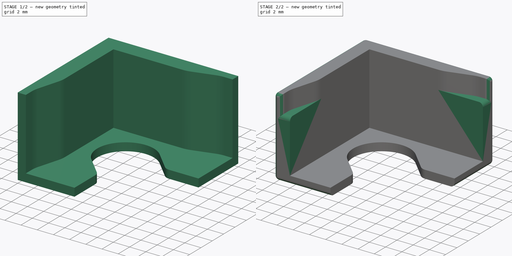
[diagram: build sequence overview — one tinted view per stage of 2, left to right]
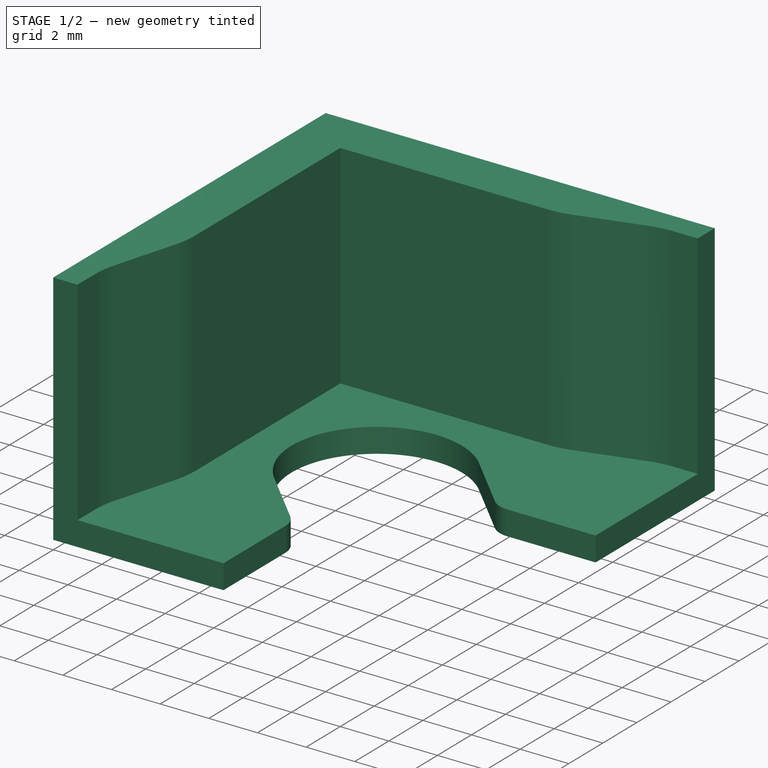
[diagram: stage 1 of 2 — iso view after this stage's code; geometry added in this stage tinted green]
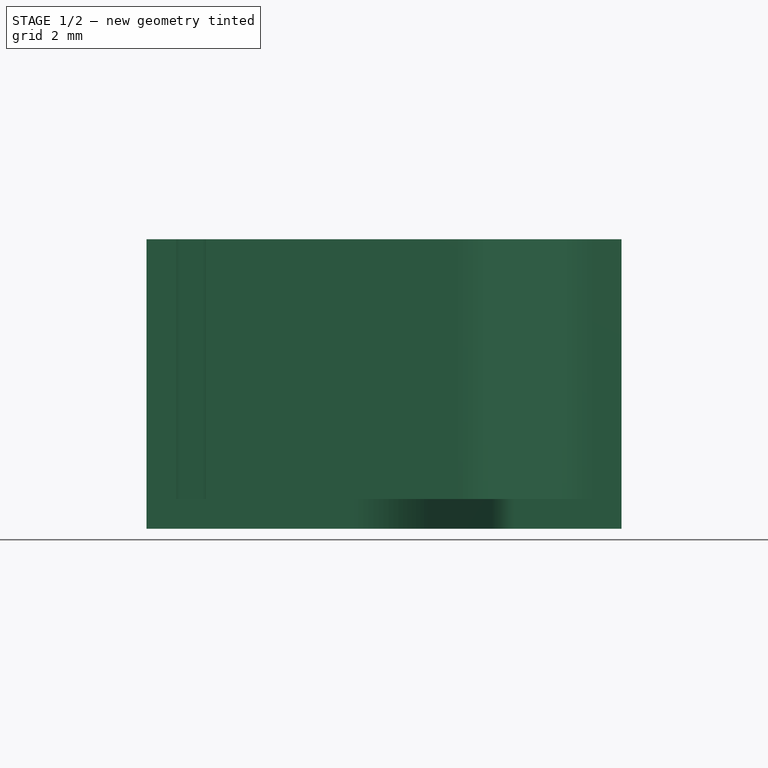
[diagram: stage 1 of 2 — front view after this stage's code; geometry added in this stage tinted green]
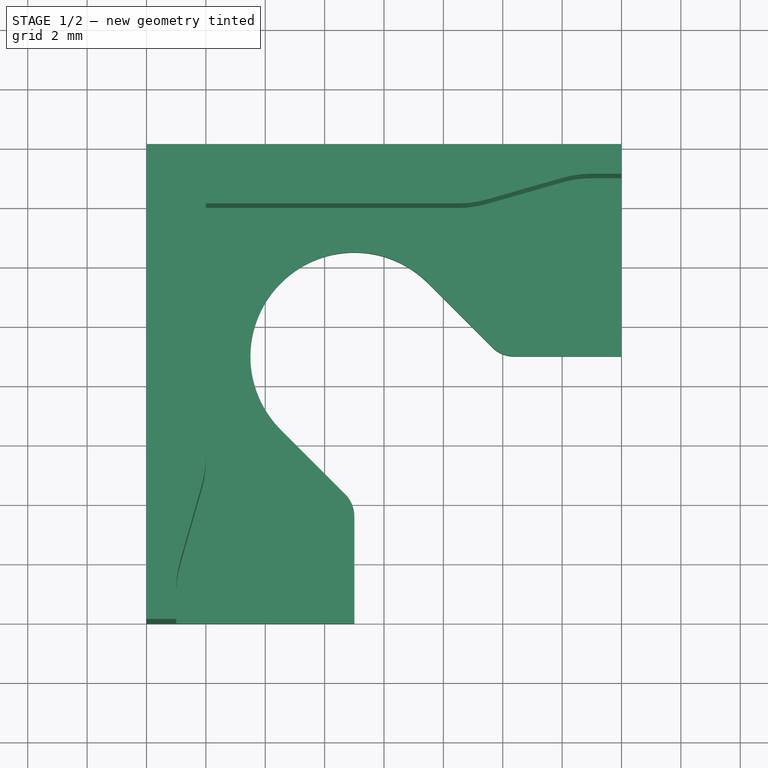
[diagram: stage 1 of 2 — top view after this stage's code; geometry added in this stage tinted green]
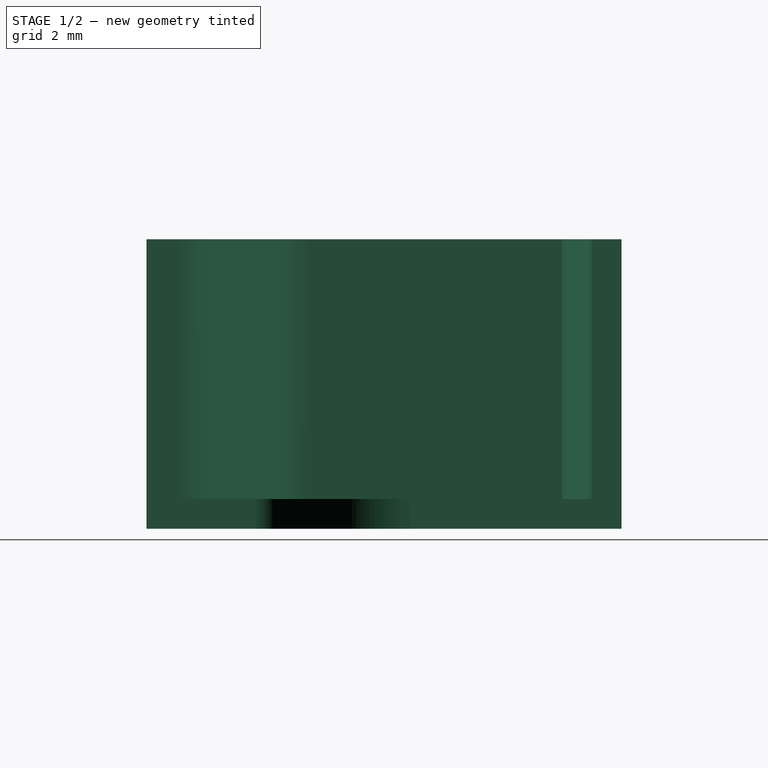
[diagram: stage 1 of 2 — right view after this stage's code; geometry added in this stage tinted green]
FCSTD DOCUMENT  (FreeCAD 1.1R)
Label: voron0.2-buildplate-stop
License: All rights reserved
LicenseURL: https://en.wikipedia.org/wiki/All_rights_reserved
objects: Sketcher::SketchObject×3, PartDesign::Pad×3, App::Point×1, PartDesign::Fillet×1, PartDesign::Body×1
note: 19 computed .brp shape members not serialized (recipe doc carries the construction recipe); baked Part::Feature solids carry a one-line shape summary decoded from their .brp

FEATURE [App::Point] Origin001
  Role = Origin
FEATURE [Sketcher::SketchObject] Sketch
  ArcFitTolerance = 1e-06
  ExternalTypes = [0]
  FullyConstrained = true
  MakeInternals = false
  MapMode = 5
  sketch-geometry (23):
    g0: LineSegment StartX=0 StartY=0 StartZ=0 EndX=0 EndY=-16 EndZ=0
    g1: LineSegment [constr] StartX=9.24537 StartY=-4.75463 StartZ=0 EndX=6.17814 EndY=-3.93277 EndZ=0
    g2: LineSegment [constr] StartX=6.17814 StartY=-3.93277 StartZ=0 EndX=3.93277 EndY=-6.17814 EndZ=0
    g3: LineSegment [constr] StartX=3.93277 StartY=-6.17814 StartZ=0 EndX=4.75463 EndY=-9.24537 EndZ=0
    g4: LineSegment [constr] StartX=4.75463 StartY=-9.24537 StartZ=0 EndX=7.82186 EndY=-10.0672 EndZ=0
    g5: LineSegment [constr] StartX=7.82186 StartY=-10.0672 StartZ=0 EndX=10.0672 EndY=-7.82186 EndZ=0
    g6: LineSegment [constr] StartX=10.0672 StartY=-7.82186 StartZ=0 EndX=9.24537 EndY=-4.75463 EndZ=0
    g7: Circle [constr] CenterX=7 CenterY=-7 CenterZ=0 NormalX=0 NormalY=0 NormalZ=1 AngleXU=0 Radius=3.17543
    g8: LineSegment StartX=0 StartY=0 StartZ=0 EndX=16 EndY=0 EndZ=0
    g9: LineSegment StartX=16 StartY=0 StartZ=0 EndX=16 EndY=-7 EndZ=0
    g10: LineSegment [constr] StartX=0 StartY=0 StartZ=0 EndX=7 EndY=-7 EndZ=0
    g11: ArcOfCircle CenterX=7 CenterY=-7 CenterZ=0 NormalX=0 NormalY=0 NormalZ=1 AngleXU=0 Radius=3.5 StartAngle=0.785398 EndAngle=3.92699
    g12: LineSegment [constr] StartX=4.52513 StartY=-9.47487 StartZ=0 EndX=7 EndY=-7 EndZ=0
    g13: LineSegment StartX=9.47487 StartY=-4.52513 StartZ=0 EndX=11.6436 EndY=-6.69385 EndZ=0
    g14: LineSegment StartX=4.52513 StartY=-9.47487 StartZ=0 EndX=6.69385 EndY=-11.6436 EndZ=0
    g15: LineSegment StartX=12.3827 StartY=-7 StartZ=0 EndX=16 EndY=-7 EndZ=0
    g16: LineSegment [constr] StartX=7 StartY=-7 StartZ=0 EndX=9.47487 EndY=-4.52513 EndZ=0
    g17: LineSegment StartX=0 StartY=-16 StartZ=0 EndX=7 EndY=-16 EndZ=0
    g18: LineSegment StartX=7 StartY=-12.3827 StartZ=0 EndX=7 EndY=-16 EndZ=0
    g19: ArcOfCircle CenterX=12.3827 CenterY=-5.95475 CenterZ=0 NormalX=0 NormalY=0 NormalZ=1 AngleXU=0 Radius=1.04525 StartAngle=3.92699 EndAngle=4.71239
    g20: GeomPoint [constr] X=11.9497 Y=-7 Z=0
    g21: ArcOfCircle CenterX=5.95475 CenterY=-12.3827 CenterZ=0 NormalX=0 NormalY=0 NormalZ=1 AngleXU=0 Radius=1.04525 StartAngle=6e-16 EndAngle=0.785398
    g22: GeomPoint [constr] X=7 Y=-11.9497 Z=0
  constraints (56):
    c: PointOnObject(g0,g-1)
    c: PointOnObject(g0,g-2)
    c: Vertical(g0)
    c: Coincident(g1,g2)
    c: Coincident(g2,g3)
    c: Coincident(g3,g4)
    c: Coincident(g4,g5)
    c: Coincident(g5,g6)
    c: Coincident(g6,g1)
    c: Equal(g1, g2-g6) x5
    c: PointOnObject(g1,g7)
    c: PointOnObject(g2,g7)
    c: PointOnObject(g3,g7)
    c: PointOnObject(g4,g7)
    c: PointOnObject(g5,g7)
    c: PointOnObject(g6,g7)
    c: Distance(g6,g3) = 5.5
    c: Distance(g7,g-1) = 7
    c: Distance(g7,g0) = 7
    c: DistanceY(g0,g0) = 16
    c: Coincident(g8,g0)
    c: PointOnObject(g8,g-1)
    c: Coincident(g8,g9)
    c: Vertical(g9)
    c: Equal(g8,g0)
    c: Coincident(g10,g0)
    c: Coincident(g10,g7)
    c: Perpendicular(g2,g10)
    c: Angle(g11) = 3.14159
    c: Coincident(g11,g7)
    c: Distance(g11,g11) = 7
    c: Coincident(g12,g11)
    c: Coincident(g12,g7)
    c: Perpendicular(g12,g10)
    c: Tangent(g13,g11) = 1.5708
    c: Tangent(g14,g11) = -1.5708
    c: Coincident(g15,g9)
    c: Perpendicular(g9,g15)
    c: Coincident(g16,g7)
    c: Coincident(g16,g11)
    c: Coincident(g17,g0)
    c: Horizontal(g17)
    c: Coincident(g18,g17)
    c: Vertical(g18)
    c: DistanceY(g9,g9) = 7
    c: DistanceX(g17,g17) = 7
    c: PointOnObject(g20,g13)
    c: PointOnObject(g20,g15)
    c: Tangent(g13,g19) = -1.5708
    c: Tangent(g15,g19) = -1.5708
    c: Distance(g15,g13) = 0.8
    c: PointOnObject(g22,g14)
    c: PointOnObject(g22,g18)
    c: Tangent(g14,g21) = 1.5708
    c: Tangent(g18,g21) = 1.5708
    c: Distance(g14,g18) = 0.8
FEATURE [PartDesign::Pad] Pad
  Direction = (0,0,1)
  Length = 1
  Length2 = 10
  Profile = -> Sketch
  ReferenceAxis = -> Sketch [N_Axis]
  Refine = true
  SideType = 0
  Suppressed = false
  Type = 0
  Type2 = 0
FEATURE [Sketcher::SketchObject] Sketch001
  ArcFitTolerance = 1e-06
  AttachmentSupport = -> [Origin]
  ExternalTypes = [0]
  FullyConstrained = true
  MakeInternals = false
  MapMode = 5
  sketch-geometry (19):
    g0: LineSegment StartX=0 StartY=0 StartZ=0 EndX=16 EndY=0 EndZ=0
    g1: LineSegment StartX=16 StartY=0 StartZ=0 EndX=16 EndY=-1 EndZ=0
    g2: LineSegment StartX=16 StartY=-1 StartZ=0 EndX=15.0098 EndY=-1 EndZ=0
    g3: LineSegment StartX=14.0098 StartY=-1.14005 StartZ=0 EndX=11.4902 EndY=-1.85995 EndZ=0
    g4: LineSegment StartX=10.4902 StartY=-2 StartZ=0 EndX=2 EndY=-2 EndZ=0
    g5: LineSegment StartX=2 StartY=-2 StartZ=0 EndX=2 EndY=-10.4902 EndZ=0
    g6: LineSegment StartX=1.85995 StartY=-11.4902 StartZ=0 EndX=1.14005 EndY=-14.0098 EndZ=0
    g7: LineSegment StartX=1 StartY=-15.0098 StartZ=0 EndX=1 EndY=-16 EndZ=0
    g8: LineSegment StartX=1 StartY=-16 StartZ=0 EndX=0 EndY=-16 EndZ=0
    g9: LineSegment [constr] StartX=0 StartY=0 StartZ=0 EndX=14.1421 EndY=-14.1421 EndZ=0
    g10: ArcOfCircle CenterX=10.4902 CenterY=1.64005 CenterZ=0 NormalX=0 NormalY=0 NormalZ=1 AngleXU=0 Radius=3.64005 StartAngle=4.71239 EndAngle=4.99069
    g11: GeomPoint [constr] X=11 Y=-2 Z=0
    g12: ArcOfCircle CenterX=15.0098 CenterY=-4.64005 CenterZ=0 NormalX=0 NormalY=0 NormalZ=1 AngleXU=0 Radius=3.64005 StartAngle=1.5708 EndAngle=1.8491
    g13: GeomPoint [constr] X=14.5 Y=-1 Z=0
    g14: ArcOfCircle CenterX=4.64005 CenterY=-15.0098 CenterZ=0 NormalX=0 NormalY=0 NormalZ=1 AngleXU=0 Radius=3.64005 StartAngle=2.86329 EndAngle=3.14159
    g15: GeomPoint [constr] X=1 Y=-14.5 Z=0
    g16: ArcOfCircle CenterX=-1.64005 CenterY=-10.4902 CenterZ=0 NormalX=0 NormalY=0 NormalZ=1 AngleXU=0 Radius=3.64005 StartAngle=6.00489 EndAngle=6.28319
    g17: GeomPoint [constr] X=2 Y=-11 Z=0
    g18: LineSegment StartX=0 StartY=0 StartZ=0 EndX=0 EndY=-16 EndZ=0
  constraints (43):
    c: Distance(g0) = 16
    c: Coincident(g0,g-1)
    c: PointOnObject(g0,g-1)
    c: Distance(g1) = 1
    c: Coincident(g1,g0)
    c: Vertical(g1)
    c: Coincident(g1,g2)
    c: Horizontal(g2)
    c: Horizontal(g4)
    c: Coincident(g4,g5)
    c: Vertical(g5)
    c: Vertical(g7)
    c: Coincident(g7,g8)
    c: PointOnObject(g8,g-2)
    c: Perpendicular(g8,g-2)
    c: Distance(g0,g4) = 2
    c: Coincident(g9,g0)
    c: Symmetric(g17,g11,g9)
    c: Symmetric(g13,g15,g9)
    c: DistanceX(g4,g11) = 9
    c: DistanceX(g13,g2) = 1.5
    c: Symmetric(g7,g1,g9)
    c: Distance(g9,g9) = 20
    c: PointOnObject(g11,g3)
    c: PointOnObject(g11,g4)
    c: Tangent(g3,g10) = 1.5708
    c: Tangent(g4,g10) = 1.5708
    c: PointOnObject(g13,g2)
    c: PointOnObject(g13,g3)
    c: Tangent(g2,g12) = -1.5708
    c: Tangent(g3,g12) = -1.5708
    c: PointOnObject(g15,g6)
    c: PointOnObject(g15,g7)
    c: Tangent(g6,g14) = -1.5708
    c: Tangent(g7,g14) = -1.5708
    c: Tangent(g5,g16) = 1.5708
    c: Tangent(g6,g16) = 1.5708
    c: DistanceX(g4,g3) = 1
    c: DistanceX(g3,g2) = 1
    c: Symmetric(g5,g4,g9)
    c: Symmetric(g6,g3,g9)
    c: Coincident(g18,g0)
    c: Coincident(g18,g8)
FEATURE [PartDesign::Pad] Pad001
  BaseFeature = -> Pad
  Direction = (0,0,1)
  Length = 9.75
  Length2 = 10
  Profile = -> Sketch001
  ReferenceAxis = -> Sketch001 [N_Axis]
  Refine = true
  SideType = 0
  Suppressed = false
  Type = 0
  Type2 = 0
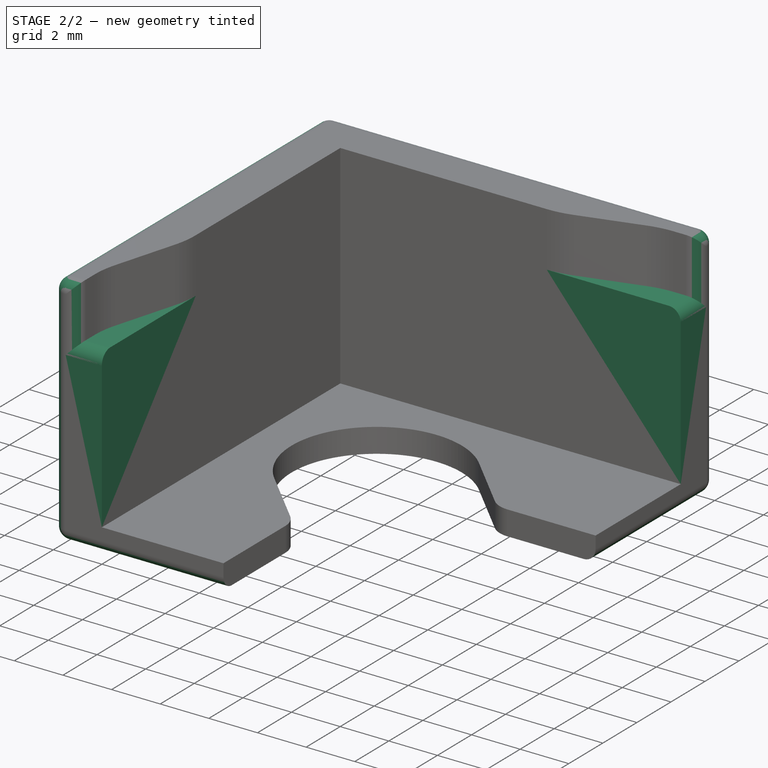
[diagram: stage 2 of 2 — iso view after this stage's code; geometry added in this stage tinted green]
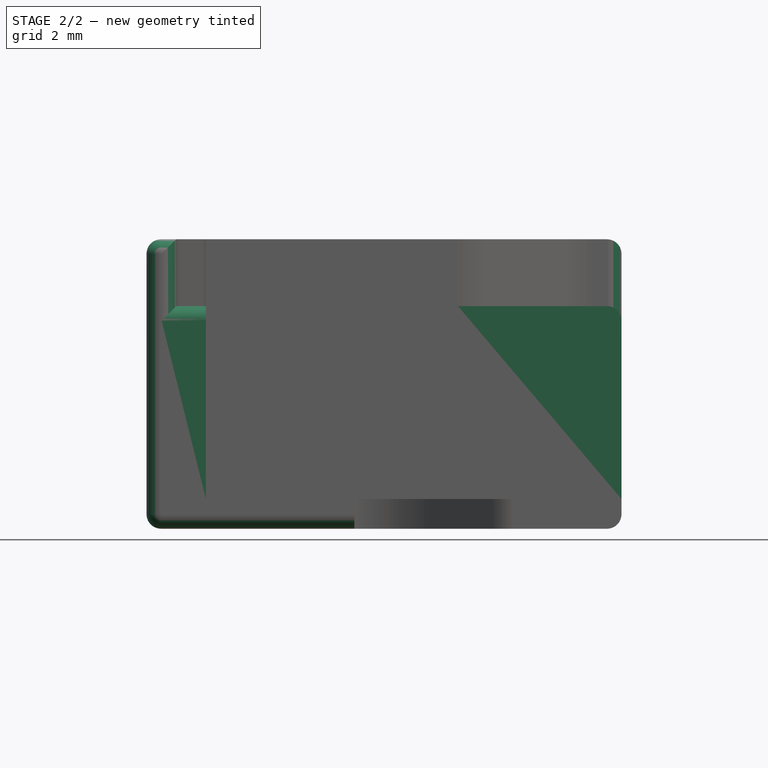
[diagram: stage 2 of 2 — front view after this stage's code; geometry added in this stage tinted green]
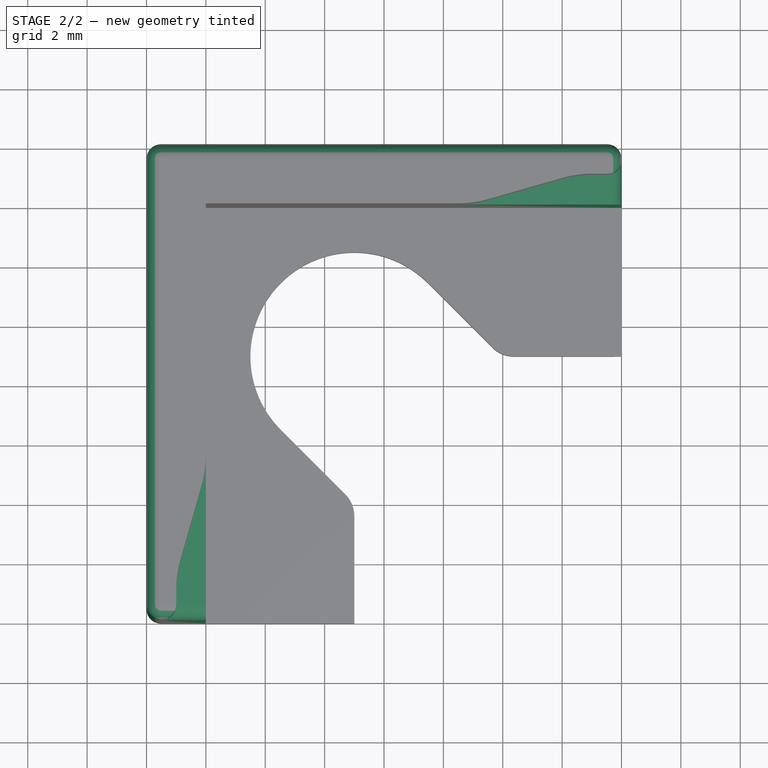
[diagram: stage 2 of 2 — top view after this stage's code; geometry added in this stage tinted green]
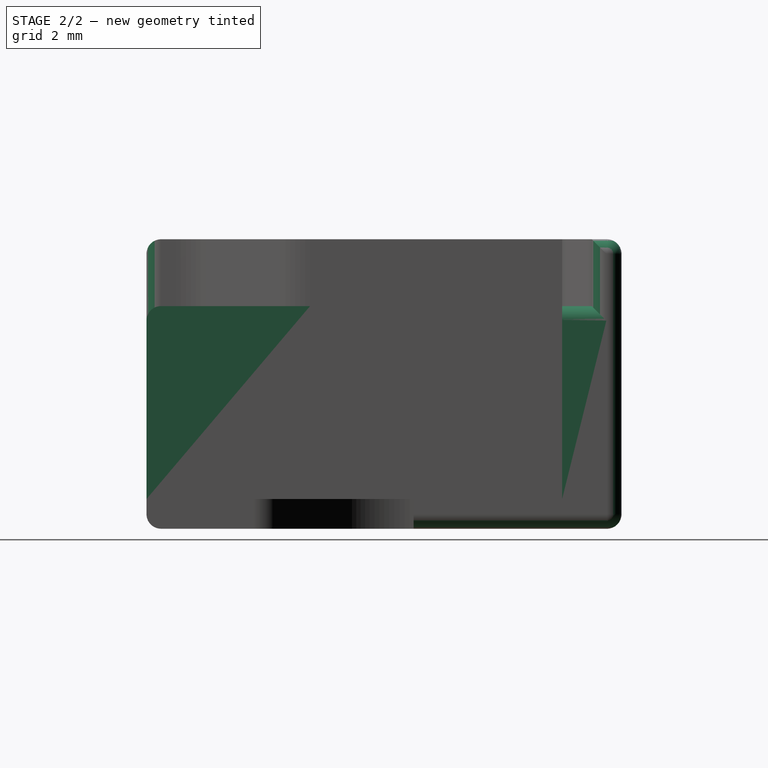
[diagram: stage 2 of 2 — right view after this stage's code; geometry added in this stage tinted green]
FEATURE [Sketcher::SketchObject] Sketch002
  ArcFitTolerance = 1e-06
  AttachmentSupport = -> [Origin]
  ExternalTypes = [0]
  FullyConstrained = true
  MakeInternals = false
  MapMode = 5
  sketch-geometry (6):
    g0: LineSegment StartX=16 StartY=-2 StartZ=0 EndX=16 EndY=0 EndZ=0
    g1: LineSegment StartX=16 StartY=0 StartZ=0 EndX=0 EndY=0 EndZ=0
    g2: LineSegment StartX=0 StartY=0 StartZ=0 EndX=0 EndY=-16 EndZ=0
    g3: LineSegment StartX=0 StartY=-16 StartZ=0 EndX=2 EndY=-16 EndZ=0
    g4: LineSegment StartX=2 StartY=-16 StartZ=0 EndX=2 EndY=-2 EndZ=0
    g5: LineSegment StartX=2 StartY=-2 StartZ=0 EndX=16 EndY=-2 EndZ=0
  constraints (17):
    c: PointOnObject(g0,g-1)
    c: Coincident(g0,g1)
    c: Coincident(g1,g-1)
    c: Coincident(g1,g2)
    c: PointOnObject(g2,g-2)
    c: Coincident(g2,g3)
    c: Horizontal(g3)
    c: Coincident(g3,g4)
    c: Vertical(g4)
    c: Coincident(g4,g5)
    c: Coincident(g5,g0)
    c: Horizontal(g5)
    c: DistanceY(g0,g0) = 2
    c: DistanceX(g1,g1) = 16
    c: Perpendicular(g0,g5)
    c: Equal(g2,g1)
    c: Equal(g3,g0)
FEATURE [PartDesign::Pad] Pad002
  BaseFeature = -> Pad001
  Direction = (0,0,1)
  Length = 7.5
  Length2 = 10
  Profile = -> Sketch002
  ReferenceAxis = -> Sketch002 [N_Axis]
  Refine = true
  SideType = 0
  Suppressed = false
  Type = 0
  Type2 = 0
FEATURE [PartDesign::Fillet] Fillet
  Base = -> Pad002 [Edge37,Edge42,Edge70,Edge58,Edge59,Edge51,Edge33,Edge32,Edge31,Edge34,Edge72,Edge27,Edge30,Edge29,Edge28]
  BaseFeature = -> Pad002
  Radius = 0.49
  Refine = true
  SupportTransform = false
  Suppressed = false
  UseAllEdges = false
FEATURE [PartDesign::Body] Body  label="v0.2 stop"
  AllowCompound = false
  Group = -> [Sketch,Pad,Sketch001,Pad001,Sketch002,Pad002,Fillet]
  Origin = -> Origin
  Tip = -> Fillet
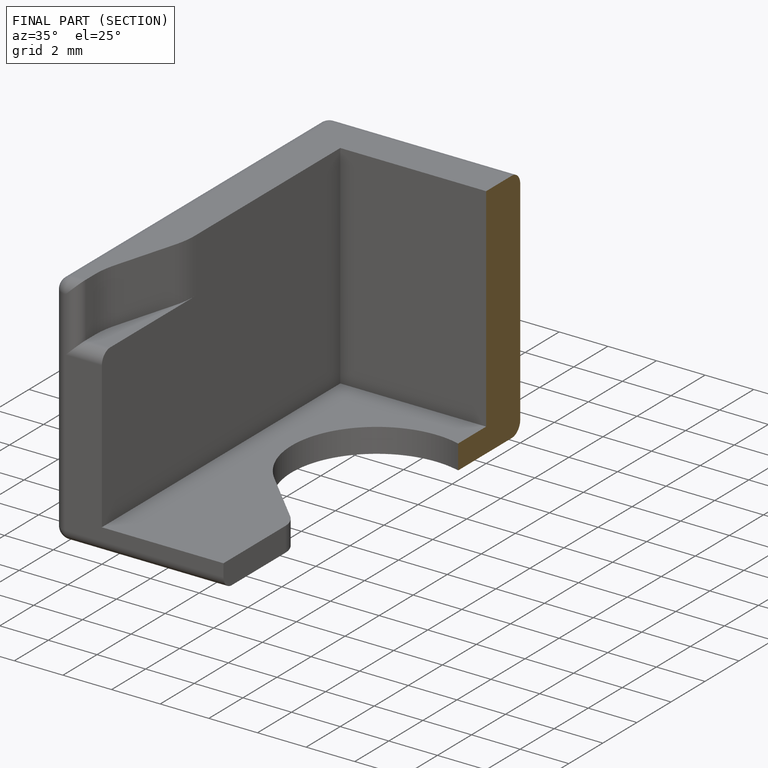
[diagram: finished part — half-section view (interior)]
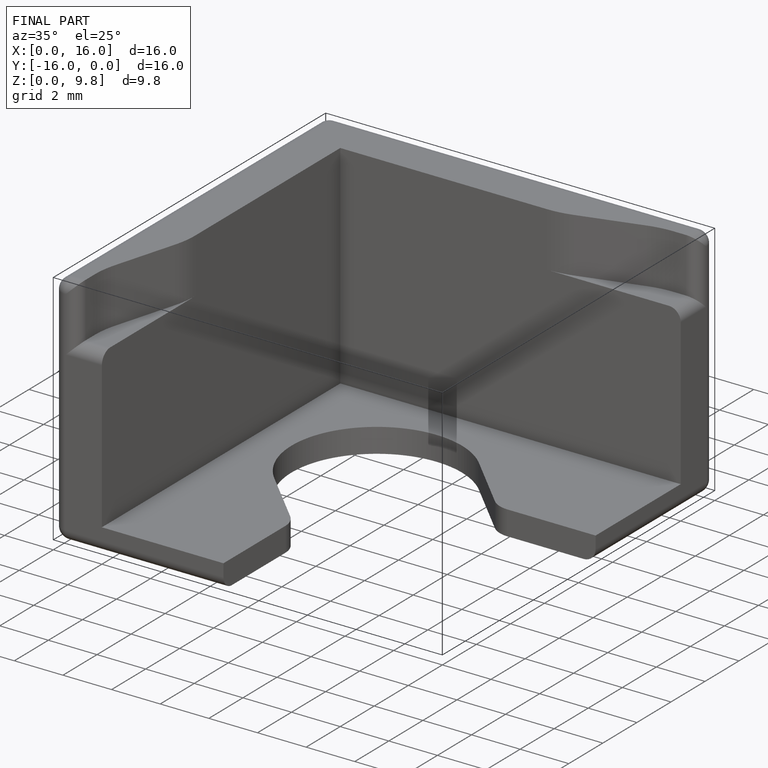
[diagram: finished part — iso view with bounding-box wireframe]
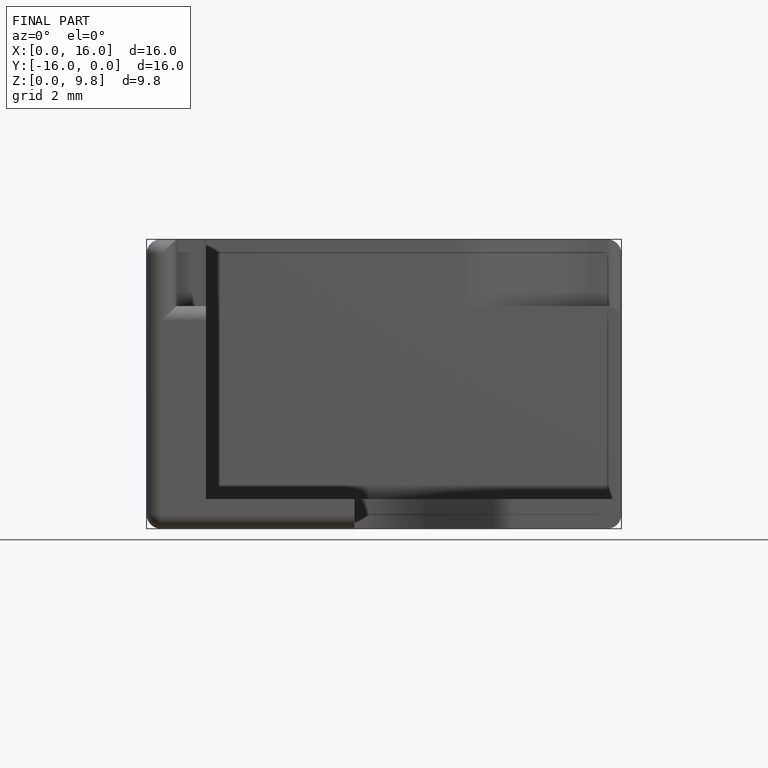
[diagram: finished part — front view with bounding-box wireframe]
